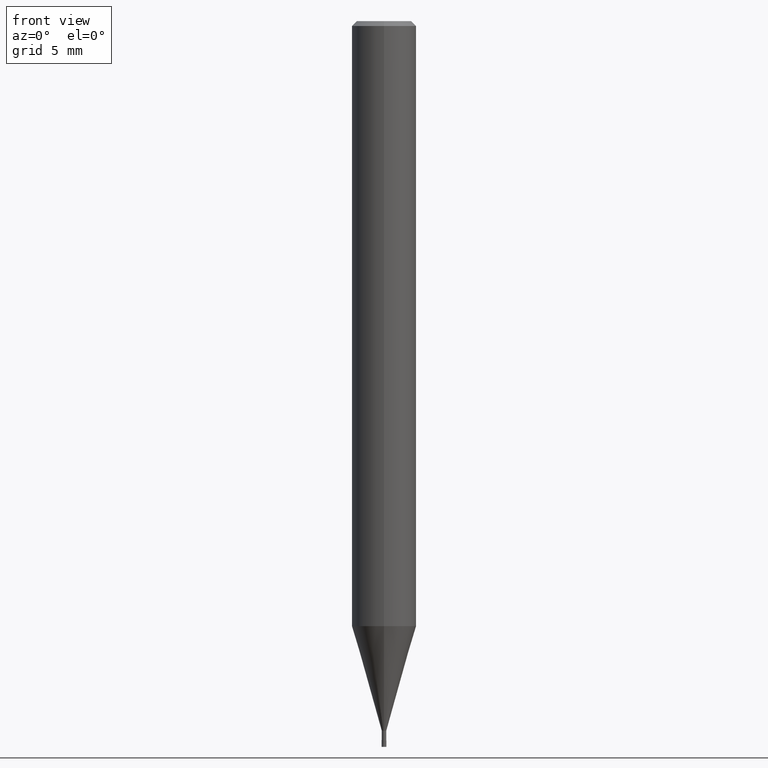
[diagram: clean part render]
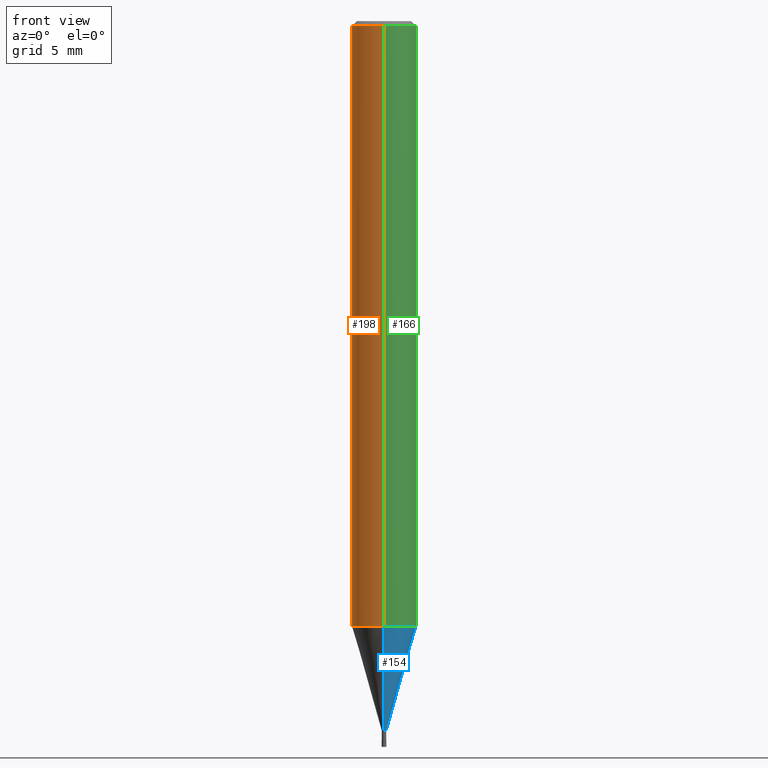
[diagram: same view with three faces highlighted in distinct colors, each labeled with its STEP entity id]
A machine part, front view with three faces highlighted in distinct colors.
Their STEP definitions:

[orange] entity #198 — the highlighted cylindrical surface (edge-blend (fillet) strip) has radius 2 mm, axis along (-0, -0, 1).
#94=VERTEX_POINT('',#231);
#98=EDGE_CURVE('',#160,#200,#235,.T.);
#112=EDGE_CURVE('',#94,#160,#250,.T.);
#160=VERTEX_POINT('',#304);
#164=VERTEX_POINT('',#308);
#198=ADVANCED_FACE('',(#349),#350,.T.);
#200=VERTEX_POINT('',#352);
#202=EDGE_CURVE('',#164,#94,#354,.T.);
#208=EDGE_CURVE('',#164,#200,#361,.T.);
#231=CARTESIAN_POINT('',(2.44921270764475E-016,-2.0,-0.299999999999997));
#235=LINE('',#381,#382);
#250=CIRCLE('',#404,2.0);
#304=CARTESIAN_POINT('',(0.0,2.0,-0.299999999999997));
#308=CARTESIAN_POINT('',(2.44921270764475E-016,-2.0,-37.513));
#349=FACE_OUTER_BOUND('',#524,.T.);
#350=CYLINDRICAL_SURFACE('',#525,2.0);
#352=CARTESIAN_POINT('',(0.0,2.0,-37.513));
#354=LINE('',#530,#531);
#361=CIRCLE('',#540,2.0);
#381=CARTESIAN_POINT('',(-2.44921270764475E-016,2.0,-18.9065));
#382=VECTOR('',#546,1.0);
#404=AXIS2_PLACEMENT_3D('',#563,#564,#565);
#524=EDGE_LOOP('',(#694,#695,#696,#697));
#525=AXIS2_PLACEMENT_3D('',#698,#699,#700);
#530=CARTESIAN_POINT('',(2.44921270764475E-016,-2.0,-18.9065));
#531=VECTOR('',#701,1.0);
#540=AXIS2_PLACEMENT_3D('',#711,#712,#713);
#546=DIRECTION('',(0.0,0.0,-1.0));
#563=CARTESIAN_POINT('',(0.0,0.0,-0.299999999999997));
#564=DIRECTION('',(0.0,0.0,-1.0));
#565=DIRECTION('',(0.0,1.0,0.0));
#694=ORIENTED_EDGE('',*,*,#98,.T.);
#695=ORIENTED_EDGE('',*,*,#208,.F.);
#696=ORIENTED_EDGE('',*,*,#202,.T.);
#697=ORIENTED_EDGE('',*,*,#112,.T.);
#698=CARTESIAN_POINT('',(0.0,0.0,-18.9065));
#699=DIRECTION('',(-0.0,-0.0,1.0));
#700=DIRECTION('',(0.0,1.0,0.0));
#701=DIRECTION('',(-0.0,-0.0,1.0));
#711=CARTESIAN_POINT('',(0.0,0.0,-37.513));
#712=DIRECTION('',(0.0,0.0,-1.0));
#713=DIRECTION('',(0.0,1.0,0.0));

[blue] entity #154 — the highlighted conical surface has half-angle 15.999 deg.
#102=VERTEX_POINT('',#239);
#120=EDGE_CURVE('',#134,#126,#258,.T.);
#126=VERTEX_POINT('',#265);
#130=VERTEX_POINT('',#269);
#134=VERTEX_POINT('',#274);
#138=EDGE_CURVE('',#102,#134,#278,.T.);
#154=ADVANCED_FACE('',(#296),#297,.T.);
#186=EDGE_CURVE('',#126,#130,#336,.T.);
#188=EDGE_CURVE('',#102,#130,#338,.T.);
#239=CARTESIAN_POINT('',(0.0,1.99995,-37.513));
#258=CIRCLE('',#416,0.13995);
#265=CARTESIAN_POINT('',(1.71383659217442E-017,-0.13995,-44.0));
#269=CARTESIAN_POINT('',(2.44915147732706E-016,-1.99995,-37.513));
#274=CARTESIAN_POINT('',(0.0,0.13995,-44.0));
#278=LINE('',#438,#439);
#296=FACE_OUTER_BOUND('',#461,.T.);
#297=CONICAL_SURFACE('',#462,1.06995,0.27923596926092);
#336=LINE('',#509,#510);
#338=CIRCLE('',#513,1.99995);
#416=AXIS2_PLACEMENT_3D('',#575,#576,#577);
#438=CARTESIAN_POINT('',(-1.31026756827225E-016,1.06995,-40.7565));
#439=VECTOR('',#595,1.0);
#461=EDGE_LOOP('',(#616,#617,#618,#619));
#462=AXIS2_PLACEMENT_3D('',#620,#621,#622);
#509=CARTESIAN_POINT('',(1.31026756827225E-016,-1.06995,-40.7565));
#510=VECTOR('',#677,1.0);
#513=AXIS2_PLACEMENT_3D('',#678,#679,#680);
#575=CARTESIAN_POINT('',(0.0,0.0,-44.0));
#576=DIRECTION('',(0.0,0.0,-1.0));
#577=DIRECTION('',(0.0,1.0,0.0));
#595=DIRECTION('',(3.37527585527933E-017,-0.275621292078393,-0.961266301995986));
#616=ORIENTED_EDGE('',*,*,#138,.F.);
#617=ORIENTED_EDGE('',*,*,#188,.T.);
#618=ORIENTED_EDGE('',*,*,#186,.F.);
#619=ORIENTED_EDGE('',*,*,#120,.F.);
#620=CARTESIAN_POINT('',(0.0,0.0,-40.7565));
#621=DIRECTION('',(-0.0,-0.0,1.0));
#622=DIRECTION('',(0.0,1.0,0.0));
#677=DIRECTION('',(3.37527585527934E-017,-0.275621292078393,0.961266301995986));
#678=CARTESIAN_POINT('',(0.0,0.0,-37.513));
#679=DIRECTION('',(0.0,0.0,-1.0));
#680=DIRECTION('',(0.0,1.0,0.0));

[green] entity #166 — the highlighted cylindrical surface (edge-blend (fillet) strip) has radius 2 mm, axis along (-0, -0, 1).
#94=VERTEX_POINT('',#231);
#98=EDGE_CURVE('',#160,#200,#235,.T.);
#118=EDGE_CURVE('',#160,#94,#256,.T.);
#160=VERTEX_POINT('',#304);
#164=VERTEX_POINT('',#308);
#166=ADVANCED_FACE('',(#310),#311,.T.);
#200=VERTEX_POINT('',#352);
#202=EDGE_CURVE('',#164,#94,#354,.T.);
#206=EDGE_CURVE('',#200,#164,#359,.T.);
#231=CARTESIAN_POINT('',(2.44921270764475E-016,-2.0,-0.299999999999997));
#235=LINE('',#381,#382);
#256=CIRCLE('',#413,2.0);
#304=CARTESIAN_POINT('',(0.0,2.0,-0.299999999999997));
#308=CARTESIAN_POINT('',(2.44921270764475E-016,-2.0,-37.513));
#310=FACE_OUTER_BOUND('',#478,.T.);
#311=CYLINDRICAL_SURFACE('',#479,2.0);
#352=CARTESIAN_POINT('',(0.0,2.0,-37.513));
#354=LINE('',#530,#531);
#359=CIRCLE('',#537,2.0);
#381=CARTESIAN_POINT('',(-2.44921270764475E-016,2.0,-18.9065));
#382=VECTOR('',#546,1.0);
#413=AXIS2_PLACEMENT_3D('',#572,#573,#574);
#478=EDGE_LOOP('',(#636,#637,#638,#639));
#479=AXIS2_PLACEMENT_3D('',#640,#641,#642);
#530=CARTESIAN_POINT('',(2.44921270764475E-016,-2.0,-18.9065));
#531=VECTOR('',#701,1.0);
#537=AXIS2_PLACEMENT_3D('',#708,#709,#710);
#546=DIRECTION('',(0.0,0.0,-1.0));
#572=CARTESIAN_POINT('',(0.0,0.0,-0.299999999999997));
#573=DIRECTION('',(0.0,0.0,-1.0));
#574=DIRECTION('',(0.0,1.0,0.0));
#636=ORIENTED_EDGE('',*,*,#98,.F.);
#637=ORIENTED_EDGE('',*,*,#118,.T.);
#638=ORIENTED_EDGE('',*,*,#202,.F.);
#639=ORIENTED_EDGE('',*,*,#206,.F.);
#640=CARTESIAN_POINT('',(0.0,0.0,-18.9065));
#641=DIRECTION('',(-0.0,-0.0,1.0));
#642=DIRECTION('',(0.0,1.0,0.0));
#701=DIRECTION('',(-0.0,-0.0,1.0));
#708=CARTESIAN_POINT('',(0.0,0.0,-37.513));
#709=DIRECTION('',(0.0,0.0,-1.0));
#710=DIRECTION('',(0.0,1.0,0.0));